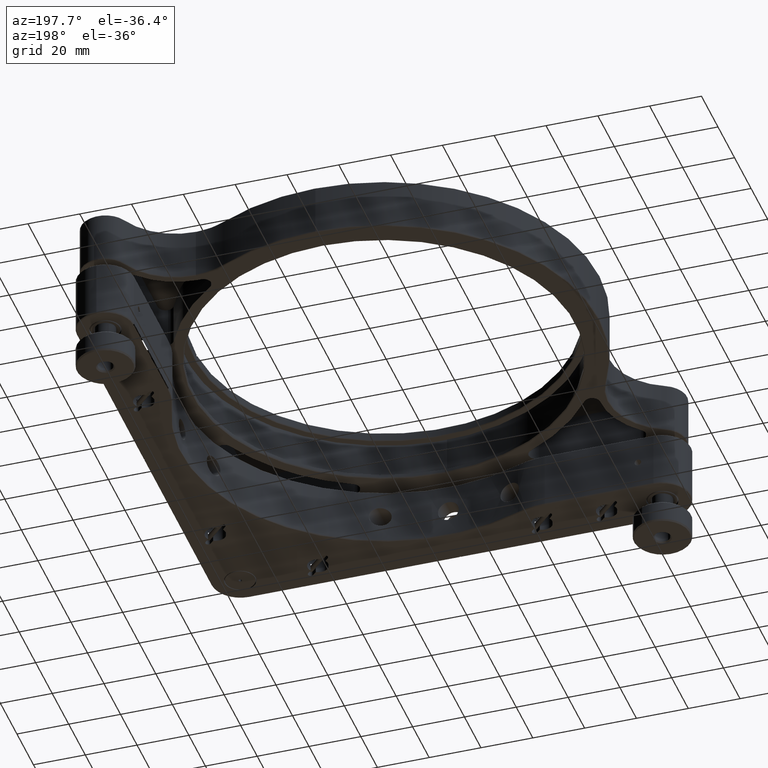
[diagram: clean part render]
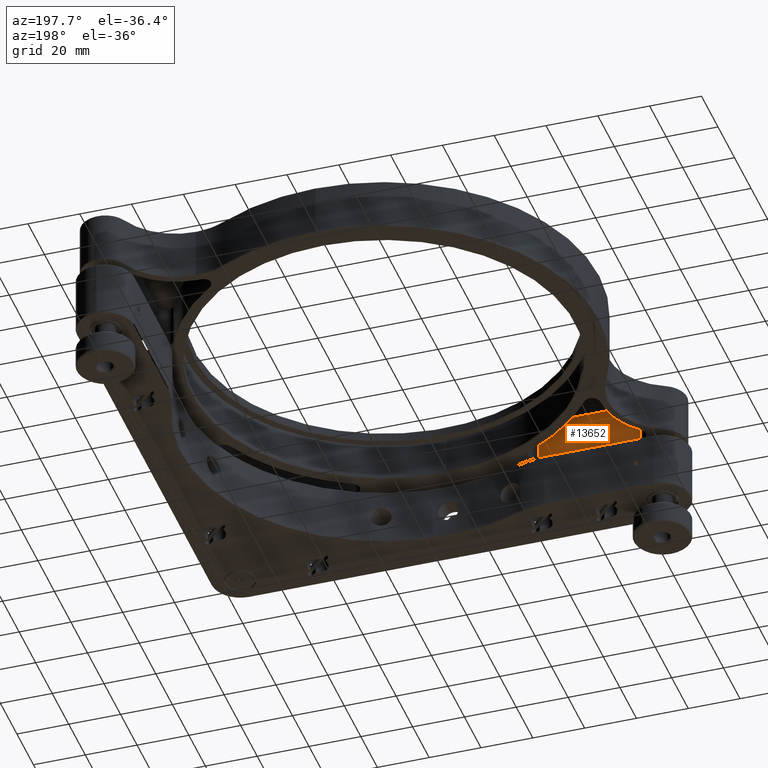
[diagram: same view with one face highlighted and labeled with its STEP entity id]
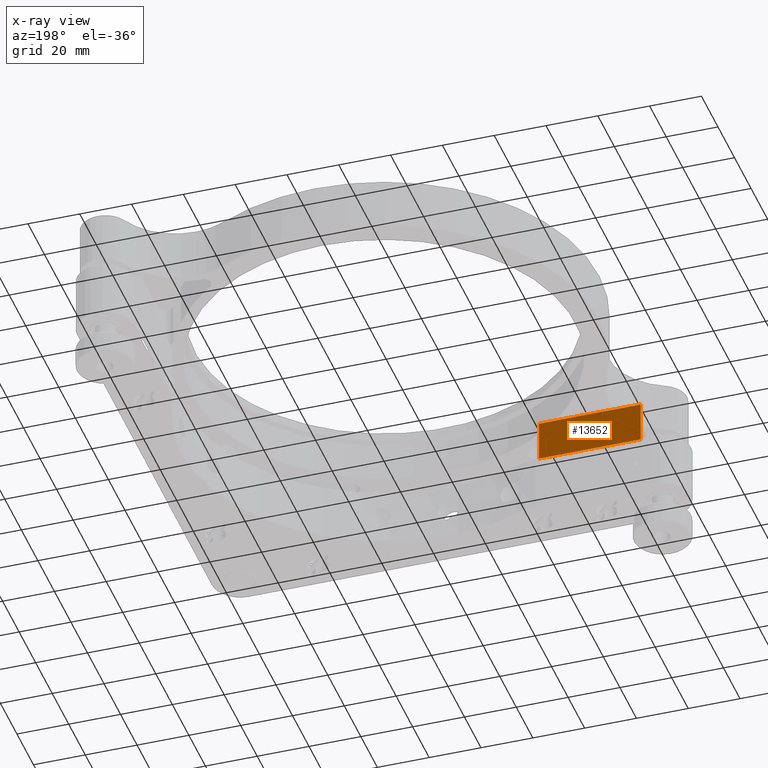
[diagram: x-ray of the same camera — body ghosted, the highlighted face saturated]
A machine part, auxiliary view. The second image highlights one B-rep face of the part: STEP entity #13652.
The next image is the same camera in x-ray: the body ghosted, the highlighted face saturated — about 1% of this face is hidden behind the body in this view.
In plain terms, the highlighted planar face has unit normal (-0, 1, 0).
Its self-contained STEP definition (entity closure, byte-faithful):
#28 = DIRECTION ( 'NONE',  ( 1.000000000000000000, 2.851821586553312554E-16, -1.460576560598804778E-21 ) ) ;
#906 = DIRECTION ( 'NONE',  ( -1.460576560598803085E-21, 1.472652018071817779E-36, -1.000000000000000000 ) ) ;
#1340 = VECTOR ( 'NONE', #8497, 1000.000000000000000 ) ;
#2679 = VECTOR ( 'NONE', #906, 1000.000000000000000 ) ;
#3240 = VECTOR ( 'NONE', #28, 1000.000000000000000 ) ;
#3793 = VERTEX_POINT ( 'NONE', #4805 ) ;
#3957 = DIRECTION ( 'NONE',  ( -2.851821586553312554E-16, 1.000000000000000000, 2.684272190272695879E-37 ) ) ;
#4336 = VERTEX_POINT ( 'NONE', #15193 ) ;
#4805 = CARTESIAN_POINT ( 'NONE',  ( -74.85098610164028798, -75.99999999999957367, 14.49528137423859420 ) ) ;
#4833 = ORIENTED_EDGE ( 'NONE', *, *, #16433, .T. ) ;
#5105 = CARTESIAN_POINT ( 'NONE',  ( -35.55896511430076856, -75.99999999999957367, 30.49528137423859420 ) ) ;
#5542 = CARTESIAN_POINT ( 'NONE',  ( -74.85098610164028798, -75.99999999999957367, 30.49528137423859420 ) ) ;
#6093 = ORIENTED_EDGE ( 'NONE', *, *, #17940, .F. ) ;
#6317 = CARTESIAN_POINT ( 'NONE',  ( -35.55896511430076856, -75.99999999999957367, 30.49528137423859420 ) ) ;
#6489 = LINE ( 'NONE', #14846, #2679 ) ;
#6838 = LINE ( 'NONE', #11230, #3240 ) ;
#7438 = VERTEX_POINT ( 'NONE', #9780 ) ;
#8497 = DIRECTION ( 'NONE',  ( 1.000000000000000000, 2.851821586553312554E-16, -1.460576560598804778E-21 ) ) ;
#8618 = FACE_OUTER_BOUND ( 'NONE', #14845, .T. ) ;
#9780 = CARTESIAN_POINT ( 'NONE',  ( -35.55896511430076856, -75.99999999999957367, 14.49528137423859420 ) ) ;
#10214 = EDGE_CURVE ( 'NONE', #3793, #7438, #11461, .T. ) ;
#10536 = VERTEX_POINT ( 'NONE', #5105 ) ;
#11230 = CARTESIAN_POINT ( 'NONE',  ( -74.85098610164028798, -75.99999999999957367, 30.49528137423859420 ) ) ;
#11461 = LINE ( 'NONE', #17002, #1340 ) ;
#11898 = DIRECTION ( 'NONE',  ( -1.460576560598803085E-21, 1.472652018071817779E-36, -1.000000000000000000 ) ) ;
#12872 = DIRECTION ( 'NONE',  ( -1.000000000000000000, -2.851821586553312554E-16, 1.460576560598804778E-21 ) ) ;
#13652 = ADVANCED_FACE ( 'NONE', ( #8618 ), #14087, .T. ) ;
#14087 = PLANE ( 'NONE',  #16229 ) ;
#14845 = EDGE_LOOP ( 'NONE', ( #14989, #6093, #4833, #17506 ) ) ;
#14846 = CARTESIAN_POINT ( 'NONE',  ( -74.85098610164028798, -75.99999999999957367, 30.49528137423859420 ) ) ;
#14989 = ORIENTED_EDGE ( 'NONE', *, *, #10214, .F. ) ;
#15193 = CARTESIAN_POINT ( 'NONE',  ( -74.85098610164028798, -75.99999999999957367, 30.49528137423859420 ) ) ;
#16229 = AXIS2_PLACEMENT_3D ( 'NONE', #5542, #3957, #12872 ) ;
#16433 = EDGE_CURVE ( 'NONE', #4336, #10536, #6838, .T. ) ;
#17002 = CARTESIAN_POINT ( 'NONE',  ( -74.85098610164028798, -75.99999999999957367, 14.49528137423859420 ) ) ;
#17208 = VECTOR ( 'NONE', #11898, 1000.000000000000000 ) ;
#17506 = ORIENTED_EDGE ( 'NONE', *, *, #17516, .T. ) ;
#17516 = EDGE_CURVE ( 'NONE', #10536, #7438, #17732, .T. ) ;
#17732 = LINE ( 'NONE', #6317, #17208 ) ;
#17940 = EDGE_CURVE ( 'NONE', #4336, #3793, #6489, .T. ) ;